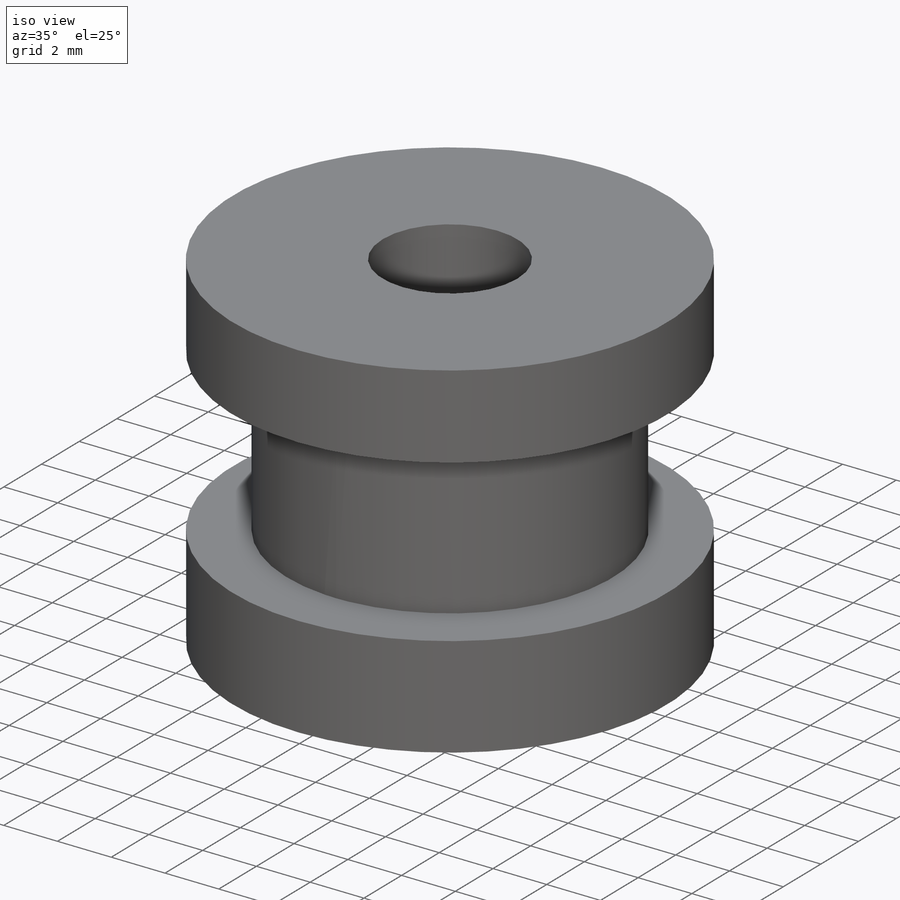
[diagram: iso view]
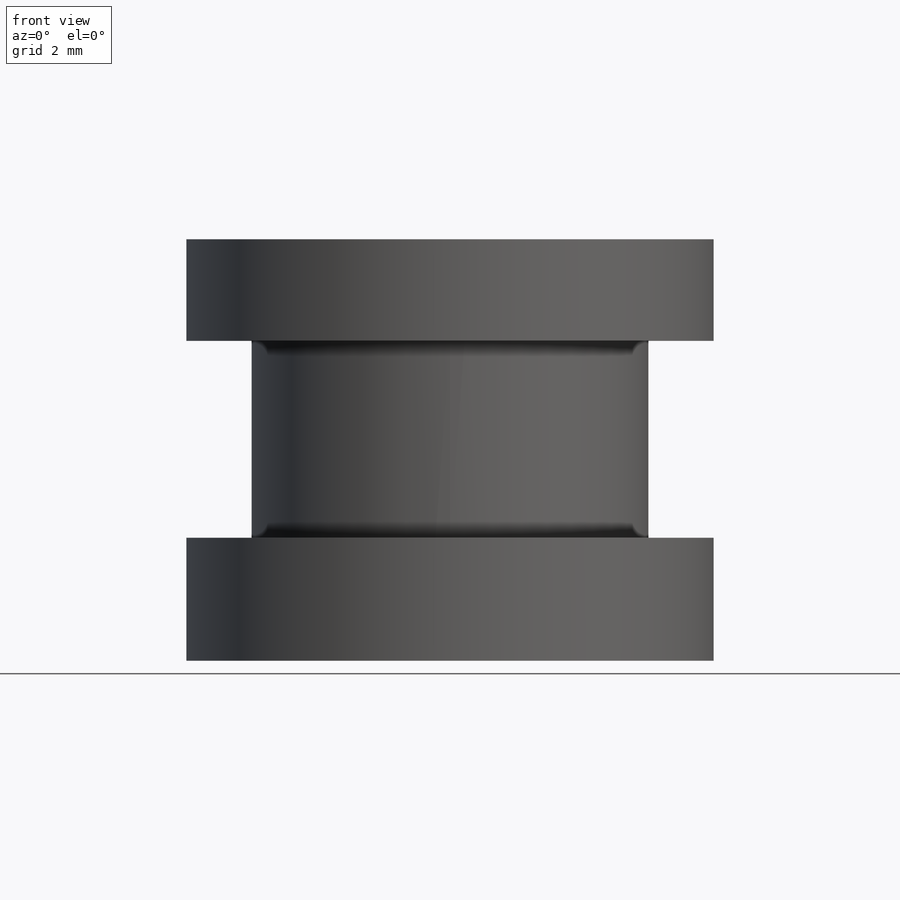
[diagram: front view]
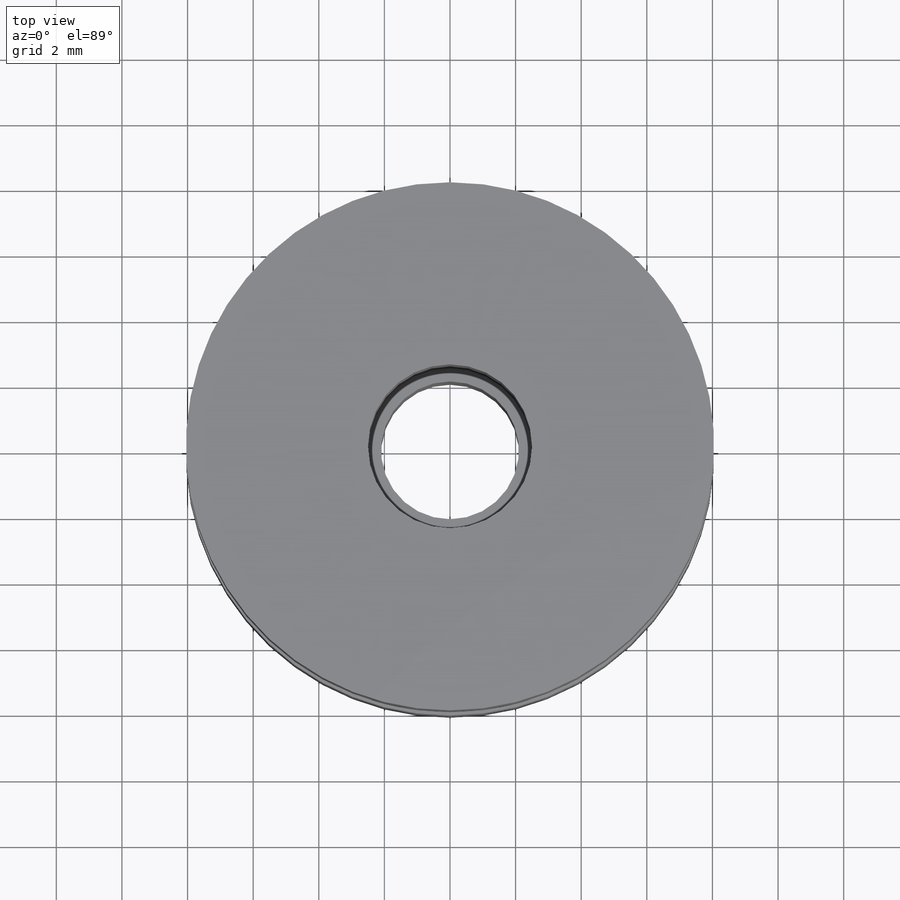
[diagram: top view]
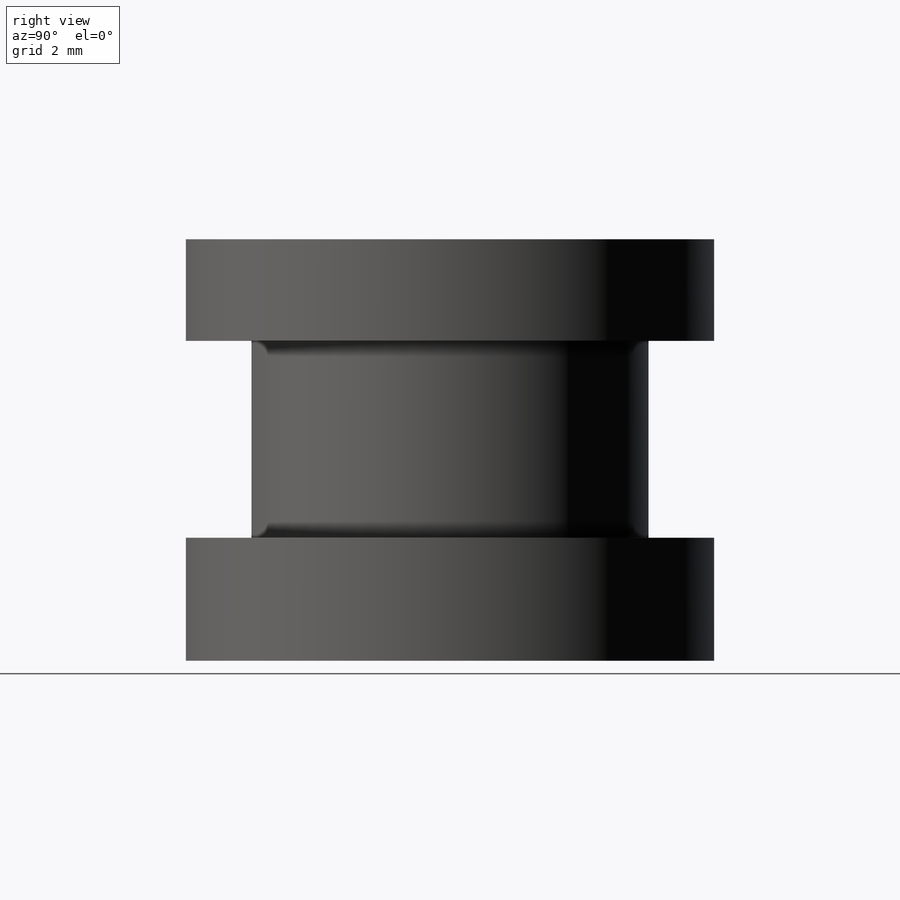
[diagram: right view]
SOLIDWORKS PART (.sldprt)
format: sldprt  version: not decoded by parser v0  size: 270,336 bytes
history: native  units: mm
features: sketch x5, extrude x3, cut_extrude x2, material x1 (+13 scaffold rows collapsed)
feature tree (24):
  scaffold x13  (default folders/planes/origin — collapsed)
  material  "Material <not specified>"
  sketch  "Sketch1"  dims[D1=16.1mm]
  extrude  "Boss-Extrude1"  Depth=3.75mm
  sketch  "Sketch2"  dims[D1=12.1mm]
  extrude  "Boss-Extrude2"  Depth=6mm
  sketch  "Sketch3"
  extrude  "Boss-Extrude3"  Depth=3.1mm
  sketch  "Sketch4"  dims[D1=4.2mm]
  cut_extrude  "Cut-Extrude1"  Depth=6mm
  sketch  "Sketch5"  dims[D1=5.0mm]
  cut_extrude  "Cut-Extrude2"  Depth=7mm
decode coverage: 9 of 10 modeling features carry decoded parameters
note: suppression state not decoded; provenance and decode notes live in map.json
